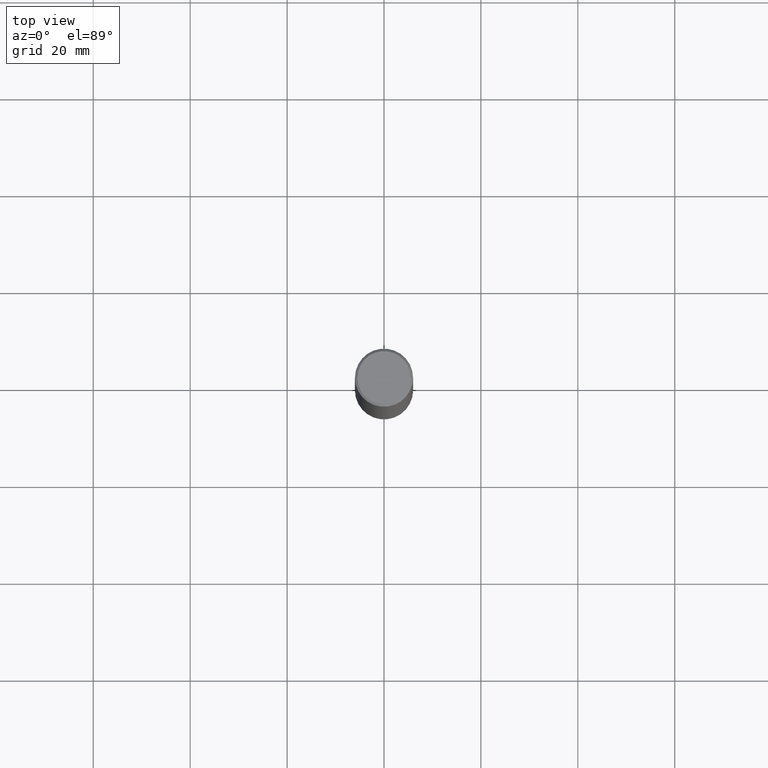
[diagram: clean part render]
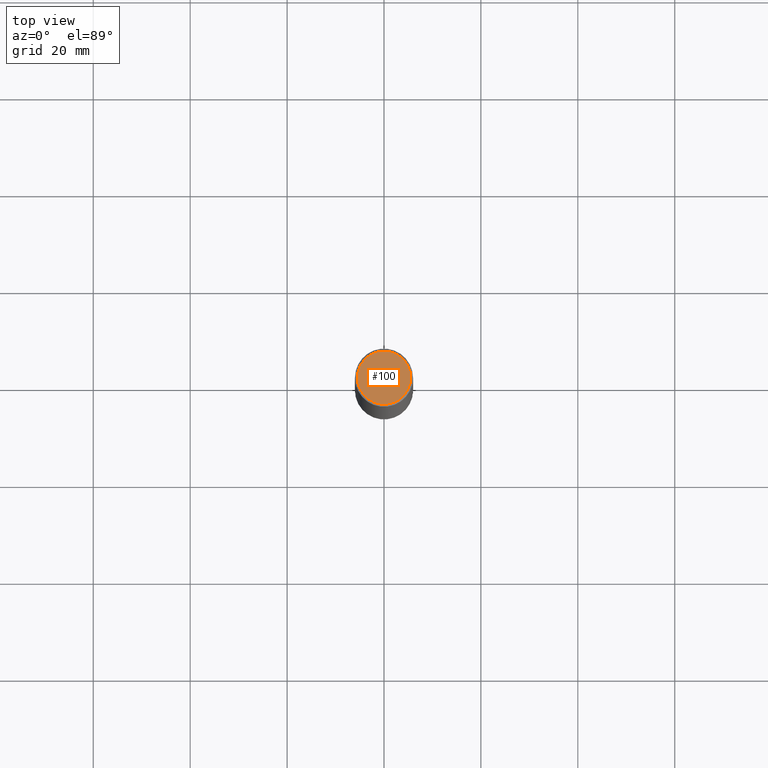
[diagram: same view with one face highlighted and labeled with its STEP entity id]
A machine part, top view. The second image highlights one B-rep face of the part: STEP entity #100.
In plain terms, the highlighted planar face has unit normal (0, -0, -1).
Its self-contained STEP definition (entity closure, byte-faithful):
#4 = CARTESIAN_POINT ( 'NONE',  ( -1.043851414335219820E-46, 1.490343170380447200E-32, 4.268512490100411279E-18 ) ) ;
#27 = DIRECTION ( 'NONE',  ( -1.000000000000000000, 6.982962677686265922E-15, -4.876176775795935793E-29 ) ) ;
#41 = VERTEX_POINT ( 'NONE', #203 ) ;
#48 = AXIS2_PLACEMENT_3D ( 'NONE', #84, #184, #27 ) ;
#62 = DIRECTION ( 'NONE',  ( 1.000000000000000000, -6.982962677686267499E-15, 4.876217060660161841E-29 ) ) ;
#83 = EDGE_CURVE ( 'NONE', #41, #290, #87, .T. ) ;
#84 = CARTESIAN_POINT ( 'NONE',  ( 1.509716530915768746E-15, 0.2161999999999997257, -7.527240092128370190E-16 ) ) ;
#87 = CIRCLE ( 'NONE', #96, 0.2161999999999997257 ) ;
#96 = AXIS2_PLACEMENT_3D ( 'NONE', #335, #129, #247 ) ;
#100 = ADVANCED_FACE ( 'NONE', ( #336 ), #189, .F. ) ;
#112 = CARTESIAN_POINT ( 'NONE',  ( 0.2161999999999997257, -1.586759460484350213E-15, 4.268512490111238857E-18 ) ) ;
#129 = DIRECTION ( 'NONE',  ( -2.445468806185136597E-29, 3.491481338843145583E-15, 1.000000000000000000 ) ) ;
#169 = CIRCLE ( 'NONE', #362, 0.2161999999999997257 ) ;
#178 = ORIENTED_EDGE ( 'NONE', *, *, #308, .T. ) ;
#184 = DIRECTION ( 'NONE',  ( 2.438088387897960049E-29, -3.491481338843145188E-15, -1.000000000000000000 ) ) ;
#189 = PLANE ( 'NONE',  #48 ) ;
#203 = CARTESIAN_POINT ( 'NONE',  ( -0.2161999999999997257, 1.544631344304200197E-15, 4.268512490089730842E-18 ) ) ;
#240 = ORIENTED_EDGE ( 'NONE', *, *, #83, .T. ) ;
#247 = DIRECTION ( 'NONE',  ( 1.000000000000000000, -6.982962677686267499E-15, 4.876217060660161841E-29 ) ) ;
#284 = DIRECTION ( 'NONE',  ( -2.445468806185136597E-29, 3.491481338843145583E-15, 1.000000000000000000 ) ) ;
#290 = VERTEX_POINT ( 'NONE', #112 ) ;
#301 = EDGE_LOOP ( 'NONE', ( #240, #178 ) ) ;
#308 = EDGE_CURVE ( 'NONE', #290, #41, #169, .T. ) ;
#335 = CARTESIAN_POINT ( 'NONE',  ( -1.043851414335219820E-46, 1.490343170380447200E-32, 4.268512490100411279E-18 ) ) ;
#336 = FACE_OUTER_BOUND ( 'NONE', #301, .T. ) ;
#362 = AXIS2_PLACEMENT_3D ( 'NONE', #4, #284, #62 ) ;